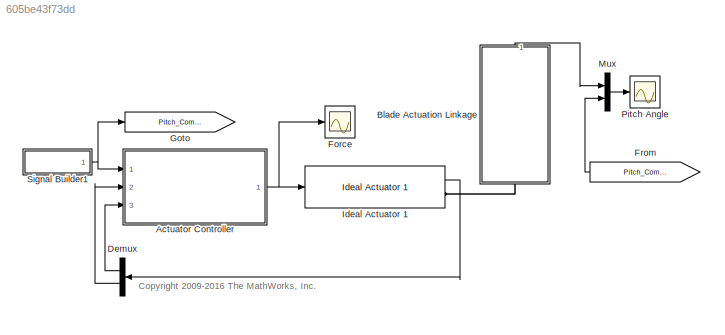
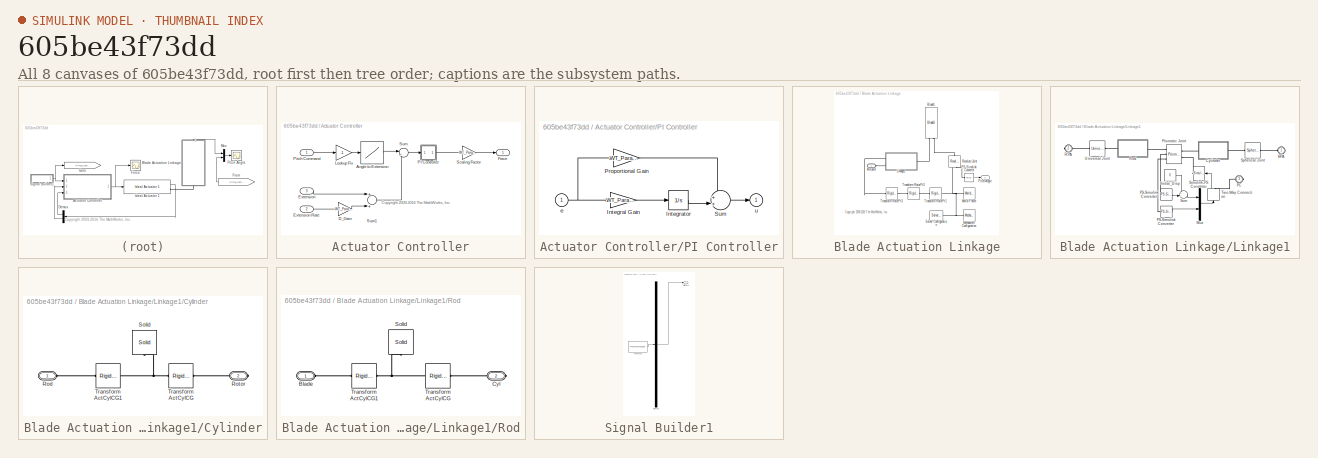
[diagram: thumbnail index - all 8 canvases of the model, root first then tree order]
MODEL slx_605be43f73dd
KIND model
CONFIG AbsTol = auto
CONFIG EnableMultiTasking = on
CONFIG FixedStep = auto
CONFIG MaxStep = auto
CONFIG MinStep = auto
CONFIG PostLoadFcn = warning off sm:compiler:topologyAnalysis:DanglingBlock
CONFIG RelTol = 1e-3
CONFIG SampleTimeConstraint = Unconstrained
CONFIG Solver = ode15s
CONFIG SolverName = ode15s
CONFIG StartTime = 0.0
CONFIG StopTime = 15
BLOCK [SubSystem] Actuator Controller
  AncestorBlock = Pitch_Controller_Lib/Inner Loop/Actuator Controller
  Ports = [3, 1]
  RequestExecContextInheritance = off
  Variant = off
BLOCK [Lookup] Actuator Controller/Angle to Extension
  InputValues = -Actuator_Lookup.angle
  SaturateOnIntegerOverflow = off
  Table = Actuator_Lookup.extension
BLOCK [Gain] Actuator Controller/D_Gain
  Gain = WT_Params.Pitch_Controller.D_Gain
  OutDataTypeStr = Inherit: Inherit via internal rule
  ParamDataTypeStr = Inherit: Inherit via internal rule
  SaturateOnIntegerOverflow = off
BLOCK [Inport] Actuator Controller/Extension
  IconDisplay = Port number
  Port = 3
BLOCK [Inport] Actuator Controller/Extension Rate
  IconDisplay = Port number
  Port = 2
BLOCK [Outport] Actuator Controller/Force
  IconDisplay = Port number
BLOCK [Gain] Actuator Controller/Lookup Fix
  Gain = -1
  OutDataTypeStr = Inherit: Inherit via internal rule
  ParamDataTypeStr = Inherit: Inherit via internal rule
  SaturateOnIntegerOverflow = off
BLOCK [SubSystem] Actuator Controller/PI Controller
  Ports = [1, 1]
  RequestExecContextInheritance = off
  Variant = off
BLOCK [Gain] Actuator Controller/PI Controller/Integral Gain
  Gain = WT_Params.Pitch_Controller.I_Gain
BLOCK [Integrator] Actuator Controller/PI Controller/Integrator
  Ports = [1, 1]
BLOCK [Gain] Actuator Controller/PI Controller/Proportional Gain
  Gain = WT_Params.Pitch_Controller.P_Gain
BLOCK [Sum] Actuator Controller/PI Controller/Sum
  IconShape = round
  Inputs = ++|
  Ports = [2, 1]
BLOCK [Inport] Actuator Controller/PI Controller/e
  IconDisplay = Port number
BLOCK [Outport] Actuator Controller/PI Controller/u
  IconDisplay = Port number
  InitialOutput = 0
BLOCK [Inport] Actuator Controller/Pitch Command
  IconDisplay = Port number
BLOCK [Gain] Actuator Controller/Scaling Factor
  Gain = WT_Params.Pitch_Actuator.ideal_actuator_scale_factor
  OutDataTypeStr = Inherit: Inherit via internal rule
  ParamDataTypeStr = Inherit: Inherit via internal rule
  SaturateOnIntegerOverflow = off
BLOCK [Sum] Actuator Controller/Sum
  IconShape = round
  InputSameDT = off
  Inputs = |+-
  OutDataTypeStr = Inherit: Inherit via internal rule
  Ports = [2, 1]
  SaturateOnIntegerOverflow = off
BLOCK [Sum] Actuator Controller/Sum1
  InputSameDT = off
  OutDataTypeStr = Inherit: Inherit via internal rule
  Ports = [2, 1]
  SaturateOnIntegerOverflow = off
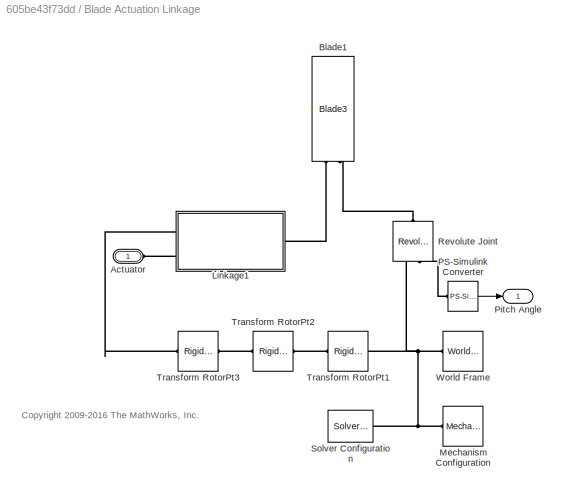
BLOCK [SubSystem] Blade Actuation Linkage
  Ports = [0, 1, 0, 0, 0, 1]
  RequestExecContextInheritance = off
  Variant = off
BLOCK [PMIOPort] Blade Actuation Linkage/Actuator
  Port = 1
  Side = Left
BLOCK [Reference] Blade Actuation Linkage/Blade1  REF=Blades_Lib/Blades/Blade3
  Ports = [0, 0, 0, 0, 0, 2, 1]
  SourceBlock = Blades_Lib/Blades/Blade3
  SourceType = SubSystem
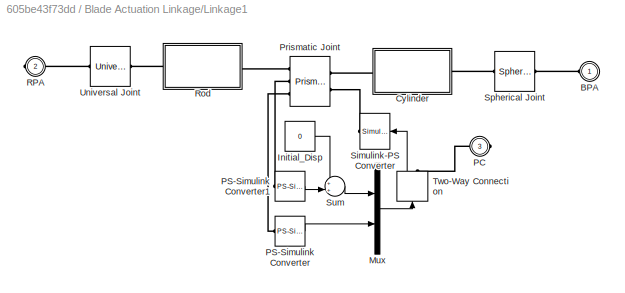
BLOCK [SubSystem] Blade Actuation Linkage/Linkage1
  Ports = [0, 0, 0, 0, 0, 1, 2]
  RequestExecContextInheritance = off
  Variant = off
BLOCK [PMIOPort] Blade Actuation Linkage/Linkage1/BPA
  Port = 1
  Side = Left
BLOCK [SubSystem] Blade Actuation Linkage/Linkage1/Cylinder
  Ports = [0, 0, 0, 0, 0, 1, 1]
  RequestExecContextInheritance = off
  Variant = off
BLOCK [PMIOPort] Blade Actuation Linkage/Linkage1/Cylinder/Rod
  Port = 1
  Side = Left
BLOCK [PMIOPort] Blade Actuation Linkage/Linkage1/Cylinder/Rotor
  Port = 2
  Side = Right
BLOCK [Reference] Blade Actuation Linkage/Linkage1/Cylinder/Solid  REF=sm_lib/Body Elements/Solid
  Ports = [0, 0, 0, 0, 0, 0, 1]
  SourceBlock = sm_lib/Body Elements/Solid
  SourceType = Solid
BLOCK [Reference] Blade Actuation Linkage/Linkage1/Cylinder/Transform ActCylCG  REF=sm_lib/Frames and
Transforms/Rigid
Transform
  Ports = [0, 0, 0, 0, 0, 1, 1]
  SourceBlock = sm_lib/Frames and\nTransforms/Rigid\nTransform
  SourceType = Rigid\nTransform
BLOCK [Reference] Blade Actuation Linkage/Linkage1/Cylinder/Transform ActCylCG1  REF=sm_lib/Frames and
Transforms/Rigid
Transform
  Ports = [0, 0, 0, 0, 0, 1, 1]
  SourceBlock = sm_lib/Frames and\nTransforms/Rigid\nTransform
  SourceType = Rigid\nTransform
BLOCK [Constant] Blade Actuation Linkage/Linkage1/Initial_Disp
  Value = 0
BLOCK [Mux] Blade Actuation Linkage/Linkage1/Mux
  DisplayOption = bar
  Inputs = 2
  Ports = [2, 1]
BLOCK [PMIOPort] Blade Actuation Linkage/Linkage1/PC
  Port = 3
  Side = Right
BLOCK [Reference] Blade Actuation Linkage/Linkage1/PS-Simulink Converter  REF=nesl_utility/PS-Simulink
Converter
  Ports = [0, 1, 0, 0, 0, 1]
  SourceBlock = nesl_utility/PS-Simulink\nConverter
  SourceType = PS-Simulink\nConverter
BLOCK [Reference] Blade Actuation Linkage/Linkage1/PS-Simulink Converter1  REF=nesl_utility/PS-Simulink
Converter
  Ports = [0, 1, 0, 0, 0, 1]
  SourceBlock = nesl_utility/PS-Simulink\nConverter
  SourceType = PS-Simulink\nConverter
BLOCK [Reference] Blade Actuation Linkage/Linkage1/Prismatic  Joint  REF=sm_lib/Joints/Prismatic
Joint
  Ports = [0, 0, 0, 0, 0, 2, 3]
  SourceBlock = sm_lib/Joints/Prismatic\nJoint
  SourceType = Prismatic\nJoint
BLOCK [PMIOPort] Blade Actuation Linkage/Linkage1/RPA
  Port = 2
  Side = Right
BLOCK [SubSystem] Blade Actuation Linkage/Linkage1/Rod
  Ports = [0, 0, 0, 0, 0, 1, 1]
  RequestExecContextInheritance = off
  Variant = off
BLOCK [PMIOPort] Blade Actuation Linkage/Linkage1/Rod/Blade
  Port = 1
  Side = Left
BLOCK [PMIOPort] Blade Actuation Linkage/Linkage1/Rod/Cyl
  Port = 2
  Side = Right
BLOCK [Reference] Blade Actuation Linkage/Linkage1/Rod/Solid  REF=sm_lib/Body Elements/Solid
  Ports = [0, 0, 0, 0, 0, 0, 1]
  SourceBlock = sm_lib/Body Elements/Solid
  SourceType = Solid
BLOCK [Reference] Blade Actuation Linkage/Linkage1/Rod/Transform ActCylCG  REF=sm_lib/Frames and
Transforms/Rigid
Transform
  Ports = [0, 0, 0, 0, 0, 1, 1]
  SourceBlock = sm_lib/Frames and\nTransforms/Rigid\nTransform
  SourceType = Rigid\nTransform
BLOCK [Reference] Blade Actuation Linkage/Linkage1/Rod/Transform ActCylCG1  REF=sm_lib/Frames and
Transforms/Rigid
Transform
  Ports = [0, 0, 0, 0, 0, 1, 1]
  SourceBlock = sm_lib/Frames and\nTransforms/Rigid\nTransform
  SourceType = Rigid\nTransform
BLOCK [Reference] Blade Actuation Linkage/Linkage1/Simulink-PS Converter  REF=nesl_utility/Simulink-PS
Converter
  Ports = [1, 0, 0, 0, 0, 0, 1]
  SourceBlock = nesl_utility/Simulink-PS\nConverter
  SourceType = Simulink-PS\nConverter
BLOCK [Reference] Blade Actuation Linkage/Linkage1/Spherical  Joint  REF=sm_lib/Joints/Spherical
Joint
  Ports = [0, 0, 0, 0, 0, 1, 1]
  SourceBlock = sm_lib/Joints/Spherical\nJoint
  SourceType = Spherical\nJoint
BLOCK [Sum] Blade Actuation Linkage/Linkage1/Sum
  IconShape = round
  InputSameDT = off
  Inputs = ++|
  OutDataTypeStr = Inherit: Inherit via internal rule
  Ports = [2, 1]
  SaturateOnIntegerOverflow = off
BLOCK [TwoWayConnection] Blade Actuation Linkage/Linkage1/Two-Way Connection
  Ports = [1, 1, 0, 0, 0, 0, 1]
BLOCK [Reference] Blade Actuation Linkage/Linkage1/Universal  Joint  REF=sm_lib/Joints/Universal
Joint
  Ports = [0, 0, 0, 0, 0, 1, 1]
  SourceBlock = sm_lib/Joints/Universal\nJoint
  SourceType = Universal\nJoint
BLOCK [Reference] Blade Actuation Linkage/Mechanism Configuration  REF=sm_lib/Utilities/Mechanism
Configuration
  Ports = [0, 0, 0, 0, 0, 0, 1]
  SourceBlock = sm_lib/Utilities/Mechanism\nConfiguration
  SourceType = Mechanism\nConfiguration
BLOCK [Reference] Blade Actuation Linkage/PS-Simulink Converter  REF=nesl_utility/PS-Simulink
Converter
  Ports = [0, 1, 0, 0, 0, 1]
  SourceBlock = nesl_utility/PS-Simulink\nConverter
  SourceType = PS-Simulink\nConverter
BLOCK [Outport] Blade Actuation Linkage/Pitch Angle
  IconDisplay = Port number
BLOCK [Reference] Blade Actuation Linkage/Revolute Joint  REF=sm_lib/Joints/Revolute Joint
  Ports = [0, 0, 0, 0, 0, 1, 2]
  SourceBlock = sm_lib/Joints/Revolute Joint
  SourceType = Revolute Joint
BLOCK [Reference] Blade Actuation Linkage/Solver Configuration  REF=nesl_utility/Solver
Configuration
  Ports = [0, 0, 0, 0, 0, 0, 1]
  SourceBlock = nesl_utility/Solver\nConfiguration
  SourceType = Solver\nConfiguration
BLOCK [Reference] Blade Actuation Linkage/Transform RotorPt1  REF=sm_lib/Frames and
Transforms/Rigid
Transform
  Ports = [0, 0, 0, 0, 0, 1, 1]
  SourceBlock = sm_lib/Frames and\nTransforms/Rigid\nTransform
  SourceType = Rigid\nTransform
BLOCK [Reference] Blade Actuation Linkage/Transform RotorPt2  REF=sm_lib/Frames and
Transforms/Rigid
Transform
  Ports = [0, 0, 0, 0, 0, 1, 1]
  SourceBlock = sm_lib/Frames and\nTransforms/Rigid\nTransform
  SourceType = Rigid\nTransform
BLOCK [Reference] Blade Actuation Linkage/Transform RotorPt3  REF=sm_lib/Frames and
Transforms/Rigid
Transform
  Ports = [0, 0, 0, 0, 0, 1, 1]
  SourceBlock = sm_lib/Frames and\nTransforms/Rigid\nTransform
  SourceType = Rigid\nTransform
BLOCK [Reference] Blade Actuation Linkage/World Frame  REF=sm_lib/Frames and
Transforms/World Frame
  Ports = [0, 0, 0, 0, 0, 0, 1]
  SourceBlock = sm_lib/Frames and\nTransforms/World Frame
  SourceType = World Frame
BLOCK [Demux] Demux
  DisplayOption = bar
  Outputs = 2
  Ports = [1, 2]
BLOCK [Scope] Force
  NumInputPorts = 1
  Ports = [1]
  ScopeSpecificationString = Simulink.scopes.TimeScopeBlockCfg('CurrentConfiguration', extmgr.ConfigurationSet(extmgr.Configuration('Core','General UI',true,'FigureColor',[0.5 0.5 0.5]),extmgr.Configuration('Core','Source UI',true),extmgr.Configuration('Sources','WiredSimulink',true,'DataLoggingVariableName','ScopeData1','DataLoggingSaveFormat','StructureWithTime','DataLoggingLimitDataPoints',true,'DataLoggingDecimation','1')...<+2659ch>
BLOCK [From] From
  CloseFcn = tagdialog Close
  GotoTag = Pitch_Command
BLOCK [Goto] Goto
  GotoTag = Pitch_Command
BLOCK [Reference] Ideal Actuator 1  REF=Pitch_Actuation_Lib/Ideal/Ideal Actuator 1
  Ports = [1, 1, 0, 0, 0, 0, 1]
  SourceBlock = Pitch_Actuation_Lib/Ideal/Ideal Actuator 1
BLOCK [Mux] Mux
  DisplayOption = bar
  Inputs = 2
  Ports = [2, 1]
BLOCK [Scope] Pitch Angle
  NumInputPorts = 1
  Ports = [1]
  ScopeSpecificationString = Simulink.scopes.TimeScopeBlockCfg('CurrentConfiguration', extmgr.ConfigurationSet(extmgr.Configuration('Core','General UI',true,'FigureColor',[0.5 0.5 0.5]),extmgr.Configuration('Core','Source UI',true),extmgr.Configuration('Sources','WiredSimulink',true,'DataLoggingSaveFormat','StructureWithTime','DataLoggingLimitDataPoints',true,'DataLoggingDecimation','1'),extmgr.Configuration('Visuals','Time D...<+2603ch>
BLOCK [SubSystem] Signal Builder1
  AncestorBlock = Turbine_Input_Lib/Commands/Signal Builder
  ClipboardFcn = sigbuilder_block('clipboard');
  CloseFcn = sigbuilder_block('close');
  ContinueFcn = sigbuilder_block('continue')
  CopyFcn = sigbuilder_block('copy');
  DeleteFcn = sigbuilder_block('delete');
  LoadFcn = sigbuilder_block('load');
  MaskHideContents = on
  ModelCloseFcn = sigbuilder_block('modelClose');
  NameChangeFcn = sigbuilder_block('namechange');
  OpenFcn = sigbuilder_block('open',[27.931 112.345 550.552 399.724 ]);
  PauseFcn = sigbuilder_block('pause')
  Ports = [0, 1]
  PreSaveFcn = sigbuilder_block('preSave');
  RequestExecContextInheritance = off
  StartFcn = sigbuilder_block('start');
  StopFcn = sigbuilder_block('stop');
  Tag = STV Subsys
  Variant = off
BLOCK [Demux] Signal Builder1/Demux
  Outputs = 1
  Ports = [1, 1]
  Tag = STV Demux
BLOCK [FromWorkspace] Signal Builder1/FromWs
  SampleTime = 0
  Tag = STV FromWs
  VariableName = tuvar
  ZeroCross = on
BLOCK [Outport] Signal Builder1/Signal 1
  IconDisplay = Port number
  Tag = STV Outport
ANNOTATION (root): <copyright redacted>
ANNOTATION Actuator Controller: <copyright redacted>
ANNOTATION Blade Actuation Linkage: <copyright redacted>
NET Actuator Controller:1 -> Force:1, Ideal Actuator 1:1
LINE Blade Actuation Linkage/Linkage1/Initial_Disp:1 -> Blade Actuation Linkage/Linkage1/Sum:1
LINE Blade Actuation Linkage/Linkage1/Mux:1 -> Blade Actuation Linkage/Linkage1/Two-Way Connection:1
LINE Blade Actuation Linkage/Linkage1/PS-Simulink Converter1:1 -> Blade Actuation Linkage/Linkage1/Sum:2
LINE Blade Actuation Linkage/Linkage1/PS-Simulink Converter:1 -> Blade Actuation Linkage/Linkage1/Mux:2
LINE Blade Actuation Linkage/Linkage1/Sum:1 -> Blade Actuation Linkage/Linkage1/Mux:1
LINE Blade Actuation Linkage/Linkage1/Two-Way Connection:1 -> Blade Actuation Linkage/Linkage1/Simulink-PS Converter:1
LINE Blade Actuation Linkage/PS-Simulink Converter:1 -> Blade Actuation Linkage/Pitch Angle:1
LINE Blade Actuation Linkage:1 -> Mux:1
LINE Demux:1 -> Actuator Controller:3
LINE Demux:2 -> Actuator Controller:2
LINE From:1 -> Mux:2
LINE Ideal Actuator 1:1 -> Demux:1
LINE Mux:1 -> Pitch Angle:1
NET Signal Builder1:1 -> Actuator Controller:1, Goto:1
PLINE Blade Actuation Linkage/Actuator:RConn1 -- Blade Actuation Linkage/Linkage1:RConn2
PLINE Blade Actuation Linkage/Blade1:LConn1 -- Blade Actuation Linkage/Linkage1:LConn1
PLINE Blade Actuation Linkage/Blade1:LConn2 -- Blade Actuation Linkage/Revolute Joint:LConn1
PLINE Blade Actuation Linkage/Linkage1/BPA:RConn1 -- Blade Actuation Linkage/Linkage1/Spherical  Joint:RConn1
PLINE Blade Actuation Linkage/Linkage1/Cylinder/Rod:RConn1 -- Blade Actuation Linkage/Linkage1/Cylinder/Transform ActCylCG1:RConn1
PLINE Blade Actuation Linkage/Linkage1/Cylinder/Rotor:RConn1 -- Blade Actuation Linkage/Linkage1/Cylinder/Transform ActCylCG:LConn1
PNET net1: Blade Actuation Linkage/Linkage1/Cylinder/Solid:RConn1 -- Blade Actuation Linkage/Linkage1/Cylinder/Transform ActCylCG1:LConn1 -- Blade Actuation Linkage/Linkage1/Cylinder/Transform ActCylCG:RConn1
PLINE Blade Actuation Linkage/Linkage1/Cylinder:LConn1 -- Blade Actuation Linkage/Linkage1/Prismatic  Joint:LConn1
PLINE Blade Actuation Linkage/Linkage1/Cylinder:RConn1 -- Blade Actuation Linkage/Linkage1/Spherical  Joint:LConn1
PLINE Blade Actuation Linkage/Linkage1/PC:RConn1 -- Blade Actuation Linkage/Linkage1/Two-Way Connection:RConn1
PLINE Blade Actuation Linkage/Linkage1/PS-Simulink Converter1:LConn1 -- Blade Actuation Linkage/Linkage1/Prismatic  Joint:RConn2
PLINE Blade Actuation Linkage/Linkage1/PS-Simulink Converter:LConn1 -- Blade Actuation Linkage/Linkage1/Prismatic  Joint:RConn3
PLINE Blade Actuation Linkage/Linkage1/Prismatic  Joint:LConn2 -- Blade Actuation Linkage/Linkage1/Simulink-PS Converter:RConn1
PLINE Blade Actuation Linkage/Linkage1/Prismatic  Joint:RConn1 -- Blade Actuation Linkage/Linkage1/Rod:RConn1
PLINE Blade Actuation Linkage/Linkage1/RPA:RConn1 -- Blade Actuation Linkage/Linkage1/Universal  Joint:RConn1
PLINE Blade Actuation Linkage/Linkage1/Rod/Blade:RConn1 -- Blade Actuation Linkage/Linkage1/Rod/Transform ActCylCG1:RConn1
PLINE Blade Actuation Linkage/Linkage1/Rod/Cyl:RConn1 -- Blade Actuation Linkage/Linkage1/Rod/Transform ActCylCG:LConn1
PNET net2: Blade Actuation Linkage/Linkage1/Rod/Solid:RConn1 -- Blade Actuation Linkage/Linkage1/Rod/Transform ActCylCG1:LConn1 -- Blade Actuation Linkage/Linkage1/Rod/Transform ActCylCG:RConn1
PLINE Blade Actuation Linkage/Linkage1/Rod:LConn1 -- Blade Actuation Linkage/Linkage1/Universal  Joint:LConn1
PLINE Blade Actuation Linkage/Linkage1:RConn1 -- Blade Actuation Linkage/Transform RotorPt3:RConn1
PNET net3: Blade Actuation Linkage/Mechanism Configuration:RConn1 -- Blade Actuation Linkage/Revolute Joint:RConn1 -- Blade Actuation Linkage/Solver Configuration:RConn1 -- Blade Actuation Linkage/Transform RotorPt1:LConn1 -- Blade Actuation Linkage/World Frame:RConn1
PLINE Blade Actuation Linkage/PS-Simulink Converter:LConn1 -- Blade Actuation Linkage/Revolute Joint:RConn2
PLINE Blade Actuation Linkage/Transform RotorPt1:RConn1 -- Blade Actuation Linkage/Transform RotorPt2:LConn1
PLINE Blade Actuation Linkage/Transform RotorPt2:RConn1 -- Blade Actuation Linkage/Transform RotorPt3:LConn1
PLINE Blade Actuation Linkage:LConn1 -- Ideal Actuator 1:RConn1
note: NET lines group one-source signal fan-out (src -> all destinations, sorted); 1:1 wires keep LINE; PNET lines group multi-terminal physical nets as a canonical sorted terminal list (undirected conserving connections); 2-terminal nets keep the pairwise PLINE form
